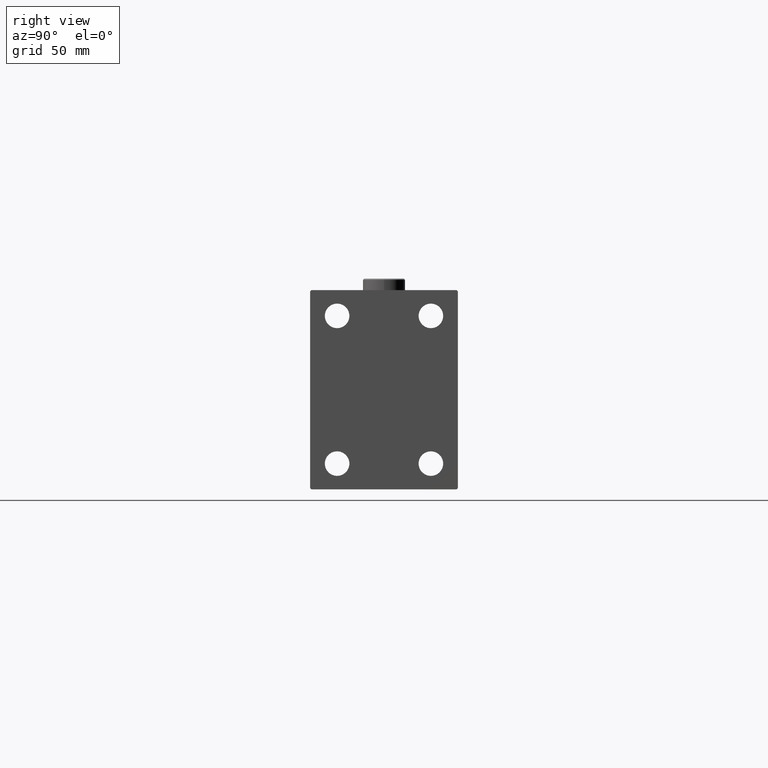
[diagram: clean part render]
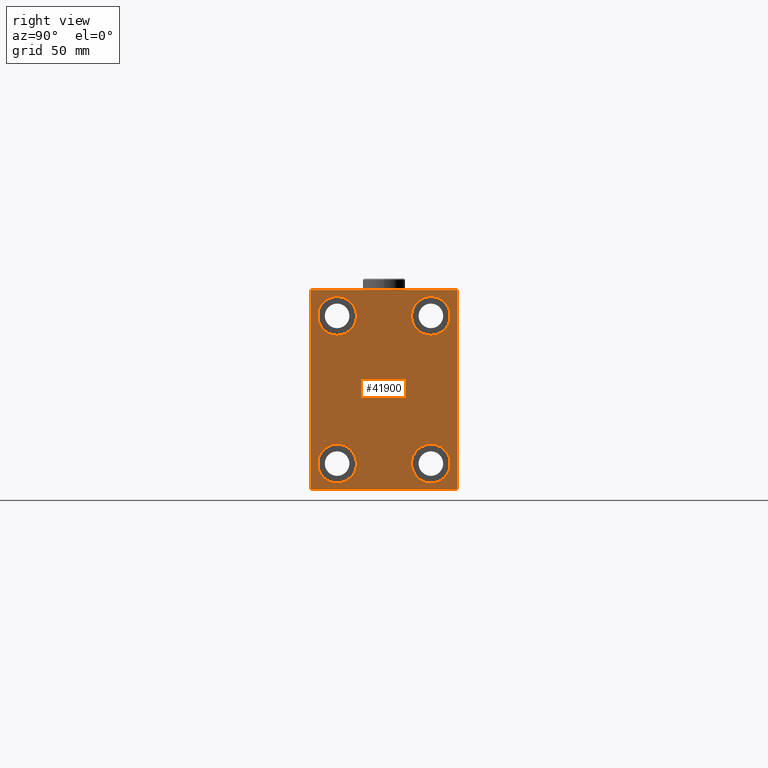
[diagram: same view with one face highlighted and labeled with its STEP entity id]
A machine part, right view. The second image highlights one B-rep face of the part: STEP entity #41900.
In plain terms, the highlighted planar face has unit normal (1, 0, 0).
Its self-contained STEP definition (entity closure, byte-faithful):
#1271 = CIRCLE ( 'NONE', #47044, 8.249999999999992895 ) ;
#2062 = DIRECTION ( 'NONE',  ( -0.000000000000000000, 0.7071067811865474617, -0.7071067811865474617 ) ) ;
#2779 = ORIENTED_EDGE ( 'NONE', *, *, #45248, .T. ) ;
#3222 = ORIENTED_EDGE ( 'NONE', *, *, #9278, .T. ) ;
#3677 = DIRECTION ( 'NONE',  ( 0.000000000000000000, 0.000000000000000000, 1.000000000000000000 ) ) ;
#3858 = EDGE_CURVE ( 'NONE', #46946, #21662, #4384, .T. ) ;
#4245 = CARTESIAN_POINT ( 'NONE',  ( 213.0000000000000000, -20.00000000000000355, -31.49999999999999289 ) ) ;
#4384 = CIRCLE ( 'NONE', #41613, 8.249999999999992895 ) ;
#5012 = ORIENTED_EDGE ( 'NONE', *, *, #22904, .T. ) ;
#5316 = CARTESIAN_POINT ( 'NONE',  ( 213.0000000000000000, -19.99999999999999645, 39.74999999999999289 ) ) ;
#5407 = CARTESIAN_POINT ( 'NONE',  ( 213.0000000000000000, 31.00000000000000000, 42.50000000000000711 ) ) ;
#5841 = EDGE_CURVE ( 'NONE', #21767, #27878, #30041, .T. ) ;
#6453 = DIRECTION ( 'NONE',  ( -1.000000000000000000, -0.000000000000000000, -0.000000000000000000 ) ) ;
#6699 = ORIENTED_EDGE ( 'NONE', *, *, #22758, .T. ) ;
#7552 = CIRCLE ( 'NONE', #23036, 8.250000000000000000 ) ;
#7820 = DIRECTION ( 'NONE',  ( 0.000000000000000000, 1.000000000000000000, 0.000000000000000000 ) ) ;
#7835 = CARTESIAN_POINT ( 'NONE',  ( 213.0000000000000000, 31.50000000000001421, -42.00000000000000711 ) ) ;
#8169 = CIRCLE ( 'NONE', #9772, 8.250000000000000000 ) ;
#8384 = VERTEX_POINT ( 'NONE', #37522 ) ;
#8805 = AXIS2_PLACEMENT_3D ( 'NONE', #4245, #18811, #19291 ) ;
#9068 = ORIENTED_EDGE ( 'NONE', *, *, #9508, .T. ) ;
#9117 = AXIS2_PLACEMENT_3D ( 'NONE', #40582, #17770, #3677 ) ;
#9278 = EDGE_CURVE ( 'NONE', #30445, #41626, #19311, .T. ) ;
#9328 = ORIENTED_EDGE ( 'NONE', *, *, #5841, .T. ) ;
#9508 = EDGE_CURVE ( 'NONE', #8384, #13490, #46092, .T. ) ;
#9772 = AXIS2_PLACEMENT_3D ( 'NONE', #46774, #6453, #32447 ) ;
#9800 = ORIENTED_EDGE ( 'NONE', *, *, #3858, .T. ) ;
#9913 = CIRCLE ( 'NONE', #23885, 8.249999999999992895 ) ;
#10099 = LINE ( 'NONE', #35359, #13849 ) ;
#10321 = CARTESIAN_POINT ( 'NONE',  ( 213.0000000000000000, -20.00000000000000355, -39.74999999999999289 ) ) ;
#10658 = CARTESIAN_POINT ( 'NONE',  ( 213.0000000000000000, -19.99999999999999645, 23.25000000000000355 ) ) ;
#11893 = DIRECTION ( 'NONE',  ( 1.000000000000000000, 0.000000000000000000, 0.000000000000000000 ) ) ;
#12136 = FACE_OUTER_BOUND ( 'NONE', #31409, .T. ) ;
#12382 = FACE_BOUND ( 'NONE', #39972, .T. ) ;
#12532 = LINE ( 'NONE', #35364, #37620 ) ;
#13004 = DIRECTION ( 'NONE',  ( -1.000000000000000000, -0.000000000000000000, -0.000000000000000000 ) ) ;
#13483 = DIRECTION ( 'NONE',  ( 0.000000000000000000, -1.000000000000000000, -2.202823461557850341E-16 ) ) ;
#13490 = VERTEX_POINT ( 'NONE', #7835 ) ;
#13843 = VERTEX_POINT ( 'NONE', #25026 ) ;
#13849 = VECTOR ( 'NONE', #13483, 1000.000000000000000 ) ;
#14205 = EDGE_CURVE ( 'NONE', #25166, #43829, #31295, .T. ) ;
#14402 = AXIS2_PLACEMENT_3D ( 'NONE', #41770, #11893, #44941 ) ;
#14821 = CARTESIAN_POINT ( 'NONE',  ( 213.0000000000000000, -31.50000000000000000, 41.99999999999999289 ) ) ;
#15009 = EDGE_CURVE ( 'NONE', #19051, #21482, #18901, .T. ) ;
#15623 = EDGE_LOOP ( 'NONE', ( #16854, #38036 ) ) ;
#16828 = VECTOR ( 'NONE', #7820, 1000.000000000000000 ) ;
#16838 = ORIENTED_EDGE ( 'NONE', *, *, #14205, .T. ) ;
#16854 = ORIENTED_EDGE ( 'NONE', *, *, #43751, .T. ) ;
#17728 = CARTESIAN_POINT ( 'NONE',  ( 213.0000000000000000, -31.50000000000000000, -42.00000000000000711 ) ) ;
#17760 = CARTESIAN_POINT ( 'NONE',  ( 213.0000000000000000, 20.00000000000000355, 39.74999999999999289 ) ) ;
#17770 = DIRECTION ( 'NONE',  ( -1.000000000000000000, -0.000000000000000000, -0.000000000000000000 ) ) ;
#18082 = DIRECTION ( 'NONE',  ( 0.000000000000000000, -1.632680918566406300E-16, 1.000000000000000000 ) ) ;
#18811 = DIRECTION ( 'NONE',  ( -1.000000000000000000, -0.000000000000000000, -0.000000000000000000 ) ) ;
#18901 = CIRCLE ( 'NONE', #46066, 8.249999999999992895 ) ;
#19051 = VERTEX_POINT ( 'NONE', #17760 ) ;
#19291 = DIRECTION ( 'NONE',  ( 0.000000000000000000, 0.000000000000000000, 1.000000000000000000 ) ) ;
#19311 = LINE ( 'NONE', #47813, #39653 ) ;
#19543 = CARTESIAN_POINT ( 'NONE',  ( 213.0000000000000000, -36.75000000000000711, -36.75000000000000711 ) ) ;
#19950 = EDGE_CURVE ( 'NONE', #22285, #13843, #46258, .T. ) ;
#21384 = DIRECTION ( 'NONE',  ( -1.000000000000000000, -0.000000000000000000, -0.000000000000000000 ) ) ;
#21482 = VERTEX_POINT ( 'NONE', #37597 ) ;
#21662 = VERTEX_POINT ( 'NONE', #5316 ) ;
#21765 = CARTESIAN_POINT ( 'NONE',  ( 213.0000000000000000, 19.99999999999999645, -31.49999999999999289 ) ) ;
#21767 = VERTEX_POINT ( 'NONE', #25673 ) ;
#22285 = VERTEX_POINT ( 'NONE', #17728 ) ;
#22563 = VERTEX_POINT ( 'NONE', #35902 ) ;
#22758 = EDGE_CURVE ( 'NONE', #22563, #27257, #12532, .T. ) ;
#22904 = EDGE_CURVE ( 'NONE', #43829, #25166, #8169, .T. ) ;
#22973 = EDGE_CURVE ( 'NONE', #13490, #30445, #45035, .T. ) ;
#23036 = AXIS2_PLACEMENT_3D ( 'NONE', #21765, #35198, #47274 ) ;
#23491 = DIRECTION ( 'NONE',  ( 0.000000000000000000, 0.000000000000000000, 1.000000000000000000 ) ) ;
#23550 = FACE_BOUND ( 'NONE', #15623, .T. ) ;
#23885 = AXIS2_PLACEMENT_3D ( 'NONE', #46806, #28581, #39512 ) ;
#25026 = CARTESIAN_POINT ( 'NONE',  ( 213.0000000000000000, -31.00000000000000000, -42.50000000000000711 ) ) ;
#25166 = VERTEX_POINT ( 'NONE', #47181 ) ;
#25673 = CARTESIAN_POINT ( 'NONE',  ( 213.0000000000000000, 19.99999999999999645, -23.24999999999999289 ) ) ;
#25750 = ORIENTED_EDGE ( 'NONE', *, *, #30312, .T. ) ;
#26476 = EDGE_CURVE ( 'NONE', #27878, #21767, #7552, .T. ) ;
#26798 = VECTOR ( 'NONE', #18082, 1000.000000000000000 ) ;
#26802 = VECTOR ( 'NONE', #2062, 1000.000000000000114 ) ;
#27124 = CARTESIAN_POINT ( 'NONE',  ( 213.0000000000000000, 20.00000000000000355, 31.50000000000000000 ) ) ;
#27257 = VERTEX_POINT ( 'NONE', #14821 ) ;
#27484 = CARTESIAN_POINT ( 'NONE',  ( 213.0000000000000000, 19.99999999999999645, -39.74999999999999289 ) ) ;
#27626 = CARTESIAN_POINT ( 'NONE',  ( 213.0000000000000000, 36.75000000000001421, -36.75000000000001421 ) ) ;
#27878 = VERTEX_POINT ( 'NONE', #27484 ) ;
#28528 = EDGE_CURVE ( 'NONE', #21662, #46946, #9913, .T. ) ;
#28581 = DIRECTION ( 'NONE',  ( -1.000000000000000000, -0.000000000000000000, -0.000000000000000000 ) ) ;
#28901 = DIRECTION ( 'NONE',  ( 0.000000000000000000, 0.000000000000000000, 1.000000000000000000 ) ) ;
#29223 = ORIENTED_EDGE ( 'NONE', *, *, #22973, .T. ) ;
#29332 = EDGE_LOOP ( 'NONE', ( #9800, #47465 ) ) ;
#29436 = CARTESIAN_POINT ( 'NONE',  ( 213.0000000000000000, -31.50000000000000000, -42.50000000000000711 ) ) ;
#29499 = CARTESIAN_POINT ( 'NONE',  ( 213.0000000000000000, 31.50000000000001421, -42.50000000000000711 ) ) ;
#30041 = CIRCLE ( 'NONE', #9117, 8.250000000000000000 ) ;
#30312 = EDGE_CURVE ( 'NONE', #41626, #22563, #10099, .T. ) ;
#30445 = VERTEX_POINT ( 'NONE', #41862 ) ;
#31257 = DIRECTION ( 'NONE',  ( -1.000000000000000000, -0.000000000000000000, -0.000000000000000000 ) ) ;
#31295 = CIRCLE ( 'NONE', #8805, 8.250000000000000000 ) ;
#31409 = EDGE_LOOP ( 'NONE', ( #25750, #6699, #41600, #38932, #2779, #9068, #29223, #3222 ) ) ;
#31454 = CARTESIAN_POINT ( 'NONE',  ( 213.0000000000000000, 20.00000000000000355, 31.50000000000000000 ) ) ;
#31471 = DIRECTION ( 'NONE',  ( 0.000000000000000000, -0.7071067811865474617, -0.7071067811865474617 ) ) ;
#32447 = DIRECTION ( 'NONE',  ( 0.000000000000000000, 0.000000000000000000, 1.000000000000000000 ) ) ;
#33037 = LINE ( 'NONE', #36206, #36258 ) ;
#33087 = LINE ( 'NONE', #29436, #16828 ) ;
#34094 = ORIENTED_EDGE ( 'NONE', *, *, #26476, .T. ) ;
#34097 = EDGE_LOOP ( 'NONE', ( #5012, #16838 ) ) ;
#34135 = DIRECTION ( 'NONE',  ( -0.000000000000000000, -0.7071067811865474617, 0.7071067811865474617 ) ) ;
#35198 = DIRECTION ( 'NONE',  ( -1.000000000000000000, -0.000000000000000000, -0.000000000000000000 ) ) ;
#35359 = CARTESIAN_POINT ( 'NONE',  ( 213.0000000000000000, 31.50000000000000000, 42.50000000000000711 ) ) ;
#35364 = CARTESIAN_POINT ( 'NONE',  ( 213.0000000000000000, -36.75000000000000000, 36.75000000000000000 ) ) ;
#35820 = VECTOR ( 'NONE', #45859, 1000.000000000000114 ) ;
#35902 = CARTESIAN_POINT ( 'NONE',  ( 213.0000000000000000, -31.00000000000000000, 42.49999999999999289 ) ) ;
#36206 = CARTESIAN_POINT ( 'NONE',  ( 213.0000000000000000, -31.50000000000000000, 42.49999999999999289 ) ) ;
#36258 = VECTOR ( 'NONE', #43960, 1000.000000000000000 ) ;
#37403 = PLANE ( 'NONE',  #14402 ) ;
#37522 = CARTESIAN_POINT ( 'NONE',  ( 213.0000000000000000, 31.00000000000001421, -42.50000000000000711 ) ) ;
#37597 = CARTESIAN_POINT ( 'NONE',  ( 213.0000000000000000, 20.00000000000000355, 23.25000000000000355 ) ) ;
#37620 = VECTOR ( 'NONE', #31471, 1000.000000000000114 ) ;
#38036 = ORIENTED_EDGE ( 'NONE', *, *, #15009, .T. ) ;
#38354 = FACE_BOUND ( 'NONE', #34097, .T. ) ;
#38757 = DIRECTION ( 'NONE',  ( 0.000000000000000000, 0.000000000000000000, 1.000000000000000000 ) ) ;
#38932 = ORIENTED_EDGE ( 'NONE', *, *, #19950, .T. ) ;
#39512 = DIRECTION ( 'NONE',  ( 0.000000000000000000, 0.000000000000000000, 1.000000000000000000 ) ) ;
#39653 = VECTOR ( 'NONE', #34135, 1000.000000000000114 ) ;
#39972 = EDGE_LOOP ( 'NONE', ( #34094, #9328 ) ) ;
#40582 = CARTESIAN_POINT ( 'NONE',  ( 213.0000000000000000, 19.99999999999999645, -31.49999999999999289 ) ) ;
#41600 = ORIENTED_EDGE ( 'NONE', *, *, #45788, .T. ) ;
#41613 = AXIS2_PLACEMENT_3D ( 'NONE', #42995, #21384, #28901 ) ;
#41626 = VERTEX_POINT ( 'NONE', #5407 ) ;
#41770 = CARTESIAN_POINT ( 'NONE',  ( 213.0000000000000000, 0.000000000000000000, 0.000000000000000000 ) ) ;
#41862 = CARTESIAN_POINT ( 'NONE',  ( 213.0000000000000000, 31.50000000000000000, 42.00000000000000711 ) ) ;
#41900 = ADVANCED_FACE ( 'NONE', ( #12382, #45413, #23550, #38354, #12136 ), #37403, .T. ) ;
#42995 = CARTESIAN_POINT ( 'NONE',  ( 213.0000000000000000, -19.99999999999999645, 31.50000000000000000 ) ) ;
#43751 = EDGE_CURVE ( 'NONE', #21482, #19051, #1271, .T. ) ;
#43829 = VERTEX_POINT ( 'NONE', #10321 ) ;
#43960 = DIRECTION ( 'NONE',  ( 0.000000000000000000, 0.000000000000000000, -1.000000000000000000 ) ) ;
#44941 = DIRECTION ( 'NONE',  ( 0.000000000000000000, 0.000000000000000000, -1.000000000000000000 ) ) ;
#45035 = LINE ( 'NONE', #29499, #26798 ) ;
#45248 = EDGE_CURVE ( 'NONE', #13843, #8384, #33087, .T. ) ;
#45413 = FACE_BOUND ( 'NONE', #29332, .T. ) ;
#45788 = EDGE_CURVE ( 'NONE', #27257, #22285, #33037, .T. ) ;
#45859 = DIRECTION ( 'NONE',  ( -0.000000000000000000, 0.7071067811865474617, 0.7071067811865474617 ) ) ;
#46066 = AXIS2_PLACEMENT_3D ( 'NONE', #27124, #31257, #23491 ) ;
#46092 = LINE ( 'NONE', #27626, #35820 ) ;
#46258 = LINE ( 'NONE', #19543, #26802 ) ;
#46774 = CARTESIAN_POINT ( 'NONE',  ( 213.0000000000000000, -20.00000000000000355, -31.49999999999999289 ) ) ;
#46806 = CARTESIAN_POINT ( 'NONE',  ( 213.0000000000000000, -19.99999999999999645, 31.50000000000000000 ) ) ;
#46946 = VERTEX_POINT ( 'NONE', #10658 ) ;
#47044 = AXIS2_PLACEMENT_3D ( 'NONE', #31454, #13004, #38757 ) ;
#47181 = CARTESIAN_POINT ( 'NONE',  ( 213.0000000000000000, -20.00000000000000355, -23.24999999999999289 ) ) ;
#47274 = DIRECTION ( 'NONE',  ( 0.000000000000000000, 0.000000000000000000, 1.000000000000000000 ) ) ;
#47465 = ORIENTED_EDGE ( 'NONE', *, *, #28528, .T. ) ;
#47813 = CARTESIAN_POINT ( 'NONE',  ( 213.0000000000000000, 36.75000000000000711, 36.75000000000000711 ) ) ;